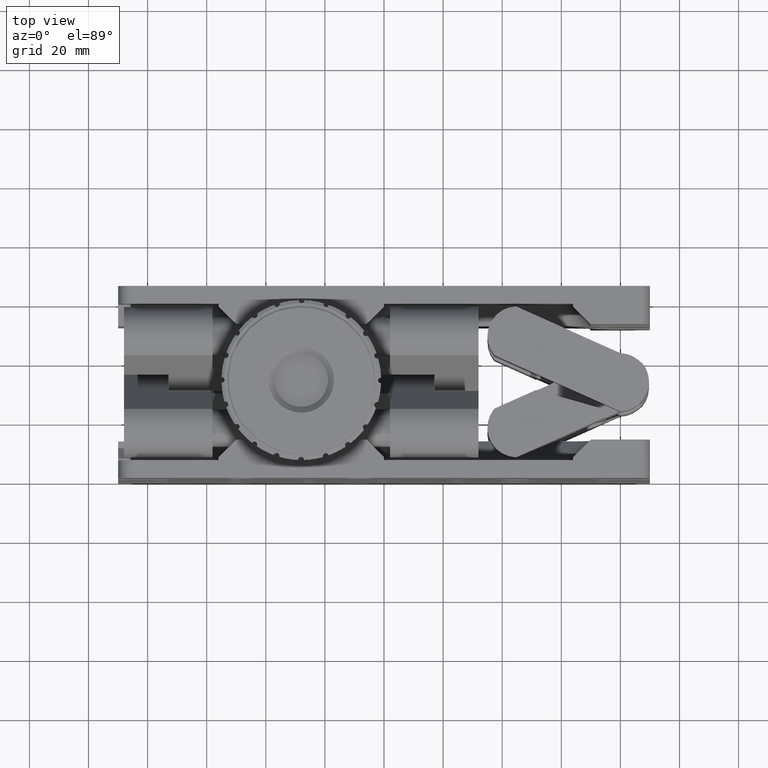
[diagram: clean part render]
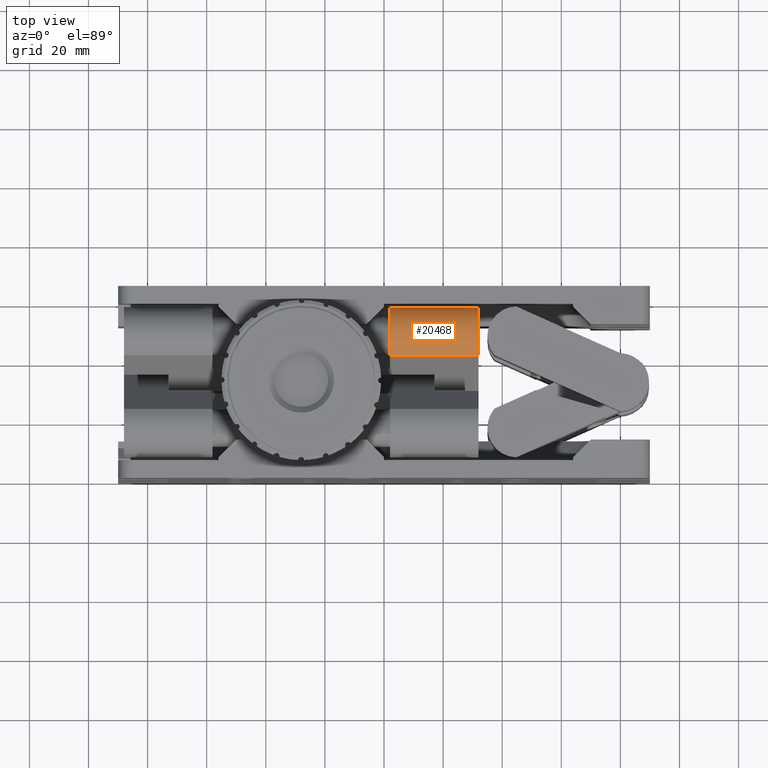
[diagram: same view with one face highlighted and labeled with its STEP entity id]
A machine part, top view. The second image highlights one B-rep face of the part: STEP entity #20468.
In plain terms, the highlighted cylindrical surface (edge-blend (fillet) strip) has radius 10 mm, axis along (1, 0, 0).
Its self-contained STEP definition (entity closure, byte-faithful):
#19 = DIRECTION ( 'NONE',  ( 0.0000000000000000000, -0.4078947368421052000, -0.9130289610173983900 ) ) ;
#664 = EDGE_LOOP ( 'NONE', ( #28176, #19231, #62371, #15818 ) ) ;
#3426 = CARTESIAN_POINT ( 'NONE',  ( -87.99999999999990100, 41.56071128834042800, 55.65085360517943500 ) ) ;
#6242 = AXIS2_PLACEMENT_3D ( 'NONE', #47157, #51633, #56543 ) ;
#8787 = VECTOR ( 'NONE', #18813, 1000.000000000000000 ) ;
#10967 = CARTESIAN_POINT ( 'NONE',  ( 31.99999999999983300, 57.99523258665362800, 48.30874834202155200 ) ) ;
#12055 = CARTESIAN_POINT ( 'NONE',  ( 1.999999999999890800, 57.99523258665362100, 48.30874834202155200 ) ) ;
#14930 = VECTOR ( 'NONE', #37307, 1000.000000000000000 ) ;
#15818 = ORIENTED_EDGE ( 'NONE', *, *, #41144, .F. ) ;
#17191 = VERTEX_POINT ( 'NONE', #12055 ) ;
#17411 = VERTEX_POINT ( 'NONE', #58477 ) ;
#17595 = VERTEX_POINT ( 'NONE', #10967 ) ;
#18813 = DIRECTION ( 'NONE',  ( 1.000000000000000000, 1.206824519700134100E-016, 9.011855792065835400E-018 ) ) ;
#19231 = ORIENTED_EDGE ( 'NONE', *, *, #53740, .T. ) ;
#20468 = ADVANCED_FACE ( 'NONE', ( #54183 ), #48085, .T. ) ;
#23646 = CARTESIAN_POINT ( 'NONE',  ( 31.99999999999983300, 48.00000000000020600, 47.99999999999972300 ) ) ;
#25758 = EDGE_CURVE ( 'NONE', #17191, #37798, #40673, .T. ) ;
#27836 = EDGE_CURVE ( 'NONE', #17595, #17411, #60233, .T. ) ;
#28176 = ORIENTED_EDGE ( 'NONE', *, *, #25758, .T. ) ;
#29630 = DIRECTION ( 'NONE',  ( 1.000000000000000000, 1.206824519700134100E-016, 9.011855792065835400E-018 ) ) ;
#31714 = LINE ( 'NONE', #3426, #14930 ) ;
#37307 = DIRECTION ( 'NONE',  ( 1.000000000000000000, 1.206824519700134100E-016, 9.011855792065835400E-018 ) ) ;
#37798 = VERTEX_POINT ( 'NONE', #51959 ) ;
#38011 = CARTESIAN_POINT ( 'NONE',  ( -87.99999999999977300, 57.99523258665362100, 48.30874834202157300 ) ) ;
#40673 = CIRCLE ( 'NONE', #6242, 9.999999999999996400 ) ;
#41144 = EDGE_CURVE ( 'NONE', #17191, #17595, #45282, .T. ) ;
#43020 = DIRECTION ( 'NONE',  ( 1.000000000000000000, 1.206824519700134100E-016, 9.011855792065835400E-018 ) ) ;
#43092 = AXIS2_PLACEMENT_3D ( 'NONE', #58799, #29630, #54101 ) ;
#45282 = LINE ( 'NONE', #38011, #8787 ) ;
#47157 = CARTESIAN_POINT ( 'NONE',  ( 1.999999999999890800, 48.00000000000019900, 47.99999999999972300 ) ) ;
#48085 = CYLINDRICAL_SURFACE ( 'NONE', #43092, 9.999999999999996400 ) ;
#51633 = DIRECTION ( 'NONE',  ( 1.000000000000000000, 4.619986505134127100E-017, -1.577094887262078000E-016 ) ) ;
#51959 = CARTESIAN_POINT ( 'NONE',  ( 1.999999999999949800, 41.56071128834047800, 55.65085360517943500 ) ) ;
#53740 = EDGE_CURVE ( 'NONE', #37798, #17411, #31714, .T. ) ;
#54101 = DIRECTION ( 'NONE',  ( 0.0000000000000000000, -0.4078947368421052000, -0.9130289610173983900 ) ) ;
#54183 = FACE_OUTER_BOUND ( 'NONE', #664, .T. ) ;
#56543 = DIRECTION ( 'NONE',  ( -1.301042606982605800E-016, -0.4078947368421052000, -0.9130289610173983900 ) ) ;
#58477 = CARTESIAN_POINT ( 'NONE',  ( 31.99999999999983300, 41.56071128834047800, 55.65085360517944900 ) ) ;
#58799 = CARTESIAN_POINT ( 'NONE',  ( -87.99999999999990100, 48.00000000000017100, 47.99999999999973700 ) ) ;
#58913 = AXIS2_PLACEMENT_3D ( 'NONE', #23646, #43020, #19 ) ;
#60233 = CIRCLE ( 'NONE', #58913, 9.999999999999996400 ) ;
#62371 = ORIENTED_EDGE ( 'NONE', *, *, #27836, .F. ) ;